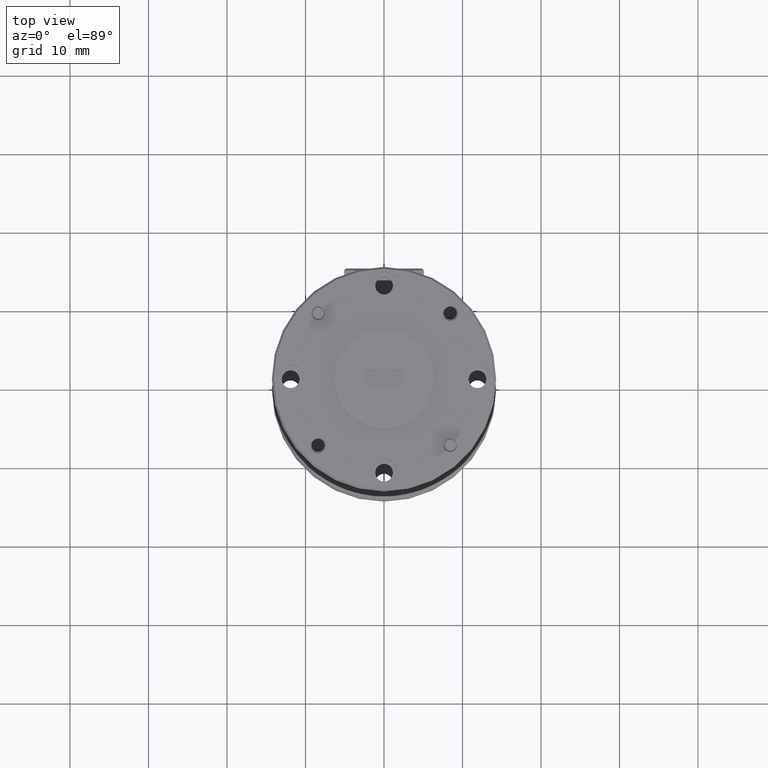
[diagram: clean part render]
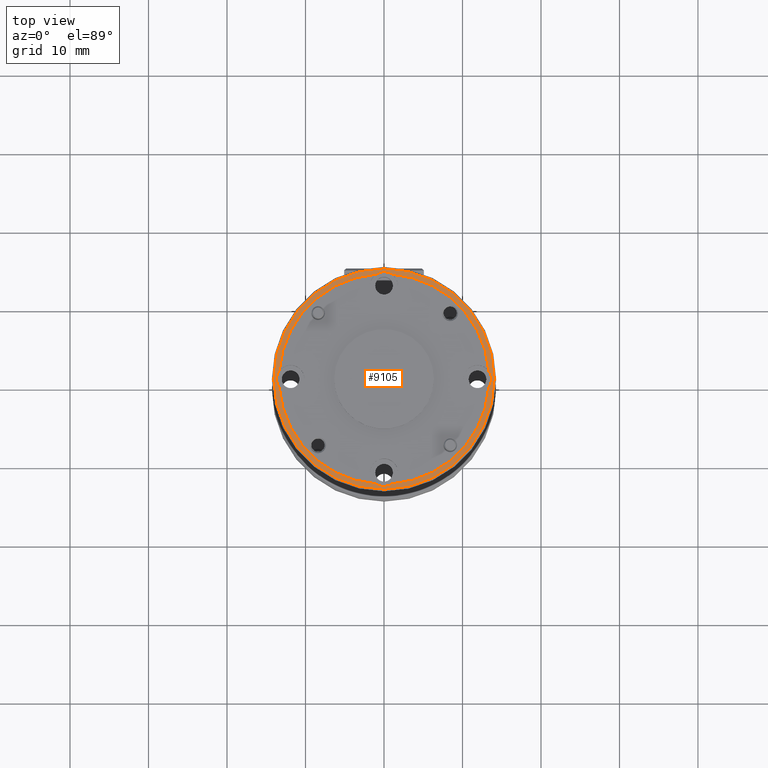
[diagram: same view with one face highlighted and labeled with its STEP entity id]
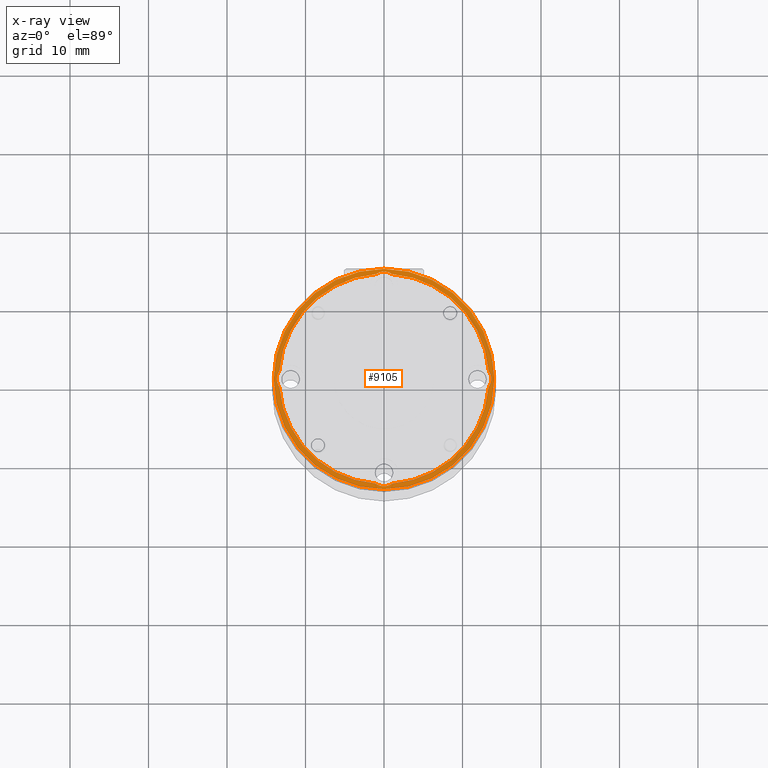
[diagram: x-ray of the same camera — body ghosted, the highlighted face saturated]
A machine part, top view. The second image highlights one B-rep face of the part: STEP entity #9105.
The next image is the same camera in x-ray: the body ghosted, the highlighted face saturated — about 0% of this face is hidden behind the body in this view.
In plain terms, the highlighted planar face has unit normal (-0, 0, 1).
Its self-contained STEP definition (entity closure, byte-faithful):
#111 = VERTEX_POINT ( 'NONE', #2902 ) ;
#113 = ORIENTED_EDGE ( 'NONE', *, *, #374, .T. ) ;
#150 = CIRCLE ( 'NONE', #5900, 0.5274999999999999689 ) ;
#246 = VERTEX_POINT ( 'NONE', #5403 ) ;
#258 = AXIS2_PLACEMENT_3D ( 'NONE', #7122, #6390, #4015 ) ;
#326 = DIRECTION ( 'NONE',  ( 1.000000000000000000, 0.000000000000000000, 0.000000000000000000 ) ) ;
#359 = ORIENTED_EDGE ( 'NONE', *, *, #8448, .F. ) ;
#374 = EDGE_CURVE ( 'NONE', #7789, #2267, #6837, .T. ) ;
#467 = ORIENTED_EDGE ( 'NONE', *, *, #6420, .F. ) ;
#536 = ORIENTED_EDGE ( 'NONE', *, *, #9314, .F. ) ;
#579 = AXIS2_PLACEMENT_3D ( 'NONE', #4782, #4672, #7075 ) ;
#602 = CIRCLE ( 'NONE', #4606, 0.07000000000000000666 ) ;
#603 = VERTEX_POINT ( 'NONE', #2219 ) ;
#724 = DIRECTION ( 'NONE',  ( -0.000000000000000000, 0.000000000000000000, 1.000000000000000000 ) ) ;
#813 = PLANE ( 'NONE',  #3799 ) ;
#852 = ORIENTED_EDGE ( 'NONE', *, *, #6288, .F. ) ;
#925 = EDGE_CURVE ( 'NONE', #8838, #1134, #6026, .T. ) ;
#948 = DIRECTION ( 'NONE',  ( 1.000000000000000000, 0.000000000000000000, 0.000000000000000000 ) ) ;
#1134 = VERTEX_POINT ( 'NONE', #3392 ) ;
#1189 = AXIS2_PLACEMENT_3D ( 'NONE', #7884, #1209, #1813 ) ;
#1209 = DIRECTION ( 'NONE',  ( 0.000000000000000000, 0.000000000000000000, 1.000000000000000000 ) ) ;
#1813 = DIRECTION ( 'NONE',  ( 1.000000000000000000, 0.000000000000000000, 0.000000000000000000 ) ) ;
#1820 = DIRECTION ( 'NONE',  ( -0.000000000000000000, 0.000000000000000000, 1.000000000000000000 ) ) ;
#1890 = DIRECTION ( 'NONE',  ( 1.000000000000000000, 0.000000000000000000, 0.000000000000000000 ) ) ;
#1897 = ORIENTED_EDGE ( 'NONE', *, *, #925, .F. ) ;
#1957 = DIRECTION ( 'NONE',  ( 0.000000000000000000, 0.000000000000000000, 1.000000000000000000 ) ) ;
#2046 = EDGE_LOOP ( 'NONE', ( #113, #8313 ) ) ;
#2059 = CARTESIAN_POINT ( 'NONE',  ( -0.4687500000000000000, 0.000000000000000000, 1.500000000000000222 ) ) ;
#2125 = EDGE_CURVE ( 'NONE', #603, #246, #9805, .T. ) ;
#2219 = CARTESIAN_POINT ( 'NONE',  ( -0.5259550000000000614, 0.04034337585031766427, 1.500000000000000222 ) ) ;
#2252 = DIRECTION ( 'NONE',  ( 1.000000000000000000, 0.000000000000000000, 0.000000000000000000 ) ) ;
#2267 = VERTEX_POINT ( 'NONE', #2911 ) ;
#2535 = AXIS2_PLACEMENT_3D ( 'NONE', #4794, #1820, #5607 ) ;
#2540 = CARTESIAN_POINT ( 'NONE',  ( 9.184850993605148438E-17, -0.4687500000000000000, 1.500000000000000222 ) ) ;
#2650 = AXIS2_PLACEMENT_3D ( 'NONE', #2540, #5639, #7186 ) ;
#2883 = DIRECTION ( 'NONE',  ( 1.000000000000000000, 0.000000000000000000, 0.000000000000000000 ) ) ;
#2902 = CARTESIAN_POINT ( 'NONE',  ( -0.04034337585031765039, -0.5259549999999999503, 1.500000000000000222 ) ) ;
#2911 = CARTESIAN_POINT ( 'NONE',  ( 0.5524999999999998801, 6.827405905246494420E-17, 1.500000000000000222 ) ) ;
#2976 = AXIS2_PLACEMENT_3D ( 'NONE', #7002, #4750, #1890 ) ;
#3304 = VERTEX_POINT ( 'NONE', #7427 ) ;
#3356 = DIRECTION ( 'NONE',  ( 1.000000000000000000, 0.000000000000000000, 0.000000000000000000 ) ) ;
#3385 = ORIENTED_EDGE ( 'NONE', *, *, #6318, .F. ) ;
#3392 = CARTESIAN_POINT ( 'NONE',  ( 0.5259549999999999503, -0.04034337585031750467, 1.500000000000000222 ) ) ;
#3458 = CIRCLE ( 'NONE', #7950, 0.5524999999999998801 ) ;
#3799 = AXIS2_PLACEMENT_3D ( 'NONE', #5241, #724, #9896 ) ;
#3905 = CARTESIAN_POINT ( 'NONE',  ( 0.04034337585031774059, 0.5259550000000000614, 1.500000000000000222 ) ) ;
#4015 = DIRECTION ( 'NONE',  ( 1.000000000000000000, 0.000000000000000000, 0.000000000000000000 ) ) ;
#4021 = VERTEX_POINT ( 'NONE', #5718 ) ;
#4038 = EDGE_CURVE ( 'NONE', #2267, #7789, #3458, .T. ) ;
#4065 = DIRECTION ( 'NONE',  ( -0.000000000000000000, 0.000000000000000000, 1.000000000000000000 ) ) ;
#4151 = DIRECTION ( 'NONE',  ( -0.000000000000000000, 0.000000000000000000, 1.000000000000000000 ) ) ;
#4249 = CARTESIAN_POINT ( 'NONE',  ( 9.184850993605148438E-17, 0.4687500000000000000, 1.500000000000000222 ) ) ;
#4606 = AXIS2_PLACEMENT_3D ( 'NONE', #4249, #7867, #3356 ) ;
#4672 = DIRECTION ( 'NONE',  ( 0.000000000000000000, 0.000000000000000000, 1.000000000000000000 ) ) ;
#4721 = EDGE_CURVE ( 'NONE', #246, #4967, #7764, .T. ) ;
#4730 = EDGE_LOOP ( 'NONE', ( #359, #536, #8119, #3385, #1897, #7220, #467, #5152, #9899, #852 ) ) ;
#4750 = DIRECTION ( 'NONE',  ( -0.000000000000000000, 0.000000000000000000, 1.000000000000000000 ) ) ;
#4782 = CARTESIAN_POINT ( 'NONE',  ( 0.000000000000000000, 0.000000000000000000, 1.500000000000000222 ) ) ;
#4794 = CARTESIAN_POINT ( 'NONE',  ( 0.000000000000000000, 0.000000000000000000, 1.500000000000000222 ) ) ;
#4905 = CIRCLE ( 'NONE', #579, 0.5274999999999999689 ) ;
#4967 = VERTEX_POINT ( 'NONE', #7417 ) ;
#5152 = ORIENTED_EDGE ( 'NONE', *, *, #4721, .F. ) ;
#5241 = CARTESIAN_POINT ( 'NONE',  ( 0.000000000000000000, 0.000000000000000000, 1.500000000000000222 ) ) ;
#5403 = CARTESIAN_POINT ( 'NONE',  ( -0.5387500000000000622, 8.572527594031471957E-18, 1.500000000000000222 ) ) ;
#5517 = EDGE_CURVE ( 'NONE', #6049, #4021, #6489, .T. ) ;
#5607 = DIRECTION ( 'NONE',  ( 1.000000000000000000, 0.000000000000000000, 0.000000000000000000 ) ) ;
#5639 = DIRECTION ( 'NONE',  ( -0.000000000000000000, -0.000000000000000000, 1.000000000000000000 ) ) ;
#5718 = CARTESIAN_POINT ( 'NONE',  ( 0.5259550000000001724, 0.04034337585031758794, 1.500000000000000222 ) ) ;
#5900 = AXIS2_PLACEMENT_3D ( 'NONE', #7992, #9336, #7080 ) ;
#6026 = CIRCLE ( 'NONE', #7790, 0.5274999999999999689 ) ;
#6049 = VERTEX_POINT ( 'NONE', #6173 ) ;
#6173 = CARTESIAN_POINT ( 'NONE',  ( 0.5387500000000000622, 0.000000000000000000, 1.500000000000000222 ) ) ;
#6288 = EDGE_CURVE ( 'NONE', #3304, #603, #4905, .T. ) ;
#6318 = EDGE_CURVE ( 'NONE', #1134, #6049, #8741, .T. ) ;
#6362 = CARTESIAN_POINT ( 'NONE',  ( 0.04034337585031787937, -0.5259549999999999503, 1.500000000000000222 ) ) ;
#6390 = DIRECTION ( 'NONE',  ( -0.000000000000000000, -0.000000000000000000, 1.000000000000000000 ) ) ;
#6420 = EDGE_CURVE ( 'NONE', #4967, #111, #6959, .T. ) ;
#6429 = EDGE_CURVE ( 'NONE', #111, #8838, #8880, .T. ) ;
#6461 = CARTESIAN_POINT ( 'NONE',  ( 0.000000000000000000, 0.000000000000000000, 1.500000000000000222 ) ) ;
#6489 = CIRCLE ( 'NONE', #2976, 0.07000000000000000666 ) ;
#6575 = CARTESIAN_POINT ( 'NONE',  ( 0.000000000000000000, 0.000000000000000000, 1.500000000000000222 ) ) ;
#6778 = VERTEX_POINT ( 'NONE', #3905 ) ;
#6782 = FACE_BOUND ( 'NONE', #4730, .T. ) ;
#6815 = AXIS2_PLACEMENT_3D ( 'NONE', #9479, #4065, #326 ) ;
#6837 = CIRCLE ( 'NONE', #2535, 0.5524999999999998801 ) ;
#6959 = CIRCLE ( 'NONE', #1189, 0.5274999999999999689 ) ;
#6984 = FACE_OUTER_BOUND ( 'NONE', #2046, .T. ) ;
#7002 = CARTESIAN_POINT ( 'NONE',  ( 0.4687500000000000000, 0.000000000000000000, 1.500000000000000222 ) ) ;
#7075 = DIRECTION ( 'NONE',  ( 1.000000000000000000, 0.000000000000000000, 0.000000000000000000 ) ) ;
#7080 = DIRECTION ( 'NONE',  ( 1.000000000000000000, 0.000000000000000000, 0.000000000000000000 ) ) ;
#7122 = CARTESIAN_POINT ( 'NONE',  ( -0.4687500000000000000, 0.000000000000000000, 1.500000000000000222 ) ) ;
#7186 = DIRECTION ( 'NONE',  ( 1.000000000000000000, 0.000000000000000000, 0.000000000000000000 ) ) ;
#7220 = ORIENTED_EDGE ( 'NONE', *, *, #6429, .F. ) ;
#7417 = CARTESIAN_POINT ( 'NONE',  ( -0.5259550000000001724, -0.04034337585031758100, 1.500000000000000222 ) ) ;
#7427 = CARTESIAN_POINT ( 'NONE',  ( -0.04034337585031757406, 0.5259550000000000614, 1.500000000000000222 ) ) ;
#7764 = CIRCLE ( 'NONE', #258, 0.07000000000000000666 ) ;
#7789 = VERTEX_POINT ( 'NONE', #8896 ) ;
#7790 = AXIS2_PLACEMENT_3D ( 'NONE', #6575, #1957, #2883 ) ;
#7867 = DIRECTION ( 'NONE',  ( -0.000000000000000000, -0.000000000000000000, 1.000000000000000000 ) ) ;
#7884 = CARTESIAN_POINT ( 'NONE',  ( 0.000000000000000000, 0.000000000000000000, 1.500000000000000222 ) ) ;
#7950 = AXIS2_PLACEMENT_3D ( 'NONE', #6461, #4151, #948 ) ;
#7992 = CARTESIAN_POINT ( 'NONE',  ( 0.000000000000000000, 0.000000000000000000, 1.500000000000000222 ) ) ;
#8119 = ORIENTED_EDGE ( 'NONE', *, *, #5517, .F. ) ;
#8181 = DIRECTION ( 'NONE',  ( -0.000000000000000000, -0.000000000000000000, 1.000000000000000000 ) ) ;
#8313 = ORIENTED_EDGE ( 'NONE', *, *, #4038, .T. ) ;
#8448 = EDGE_CURVE ( 'NONE', #6778, #3304, #602, .T. ) ;
#8741 = CIRCLE ( 'NONE', #6815, 0.07000000000000000666 ) ;
#8838 = VERTEX_POINT ( 'NONE', #6362 ) ;
#8880 = CIRCLE ( 'NONE', #2650, 0.07000000000000000666 ) ;
#8896 = CARTESIAN_POINT ( 'NONE',  ( -0.5524999999999998801, 0.000000000000000000, 1.500000000000000222 ) ) ;
#9105 = ADVANCED_FACE ( 'NONE', ( #6782, #6984 ), #813, .T. ) ;
#9314 = EDGE_CURVE ( 'NONE', #4021, #6778, #150, .T. ) ;
#9332 = AXIS2_PLACEMENT_3D ( 'NONE', #2059, #8181, #2252 ) ;
#9336 = DIRECTION ( 'NONE',  ( 0.000000000000000000, 0.000000000000000000, 1.000000000000000000 ) ) ;
#9479 = CARTESIAN_POINT ( 'NONE',  ( 0.4687500000000000000, 0.000000000000000000, 1.500000000000000222 ) ) ;
#9805 = CIRCLE ( 'NONE', #9332, 0.07000000000000000666 ) ;
#9896 = DIRECTION ( 'NONE',  ( 1.000000000000000000, 0.000000000000000000, 0.000000000000000000 ) ) ;
#9899 = ORIENTED_EDGE ( 'NONE', *, *, #2125, .F. ) ;